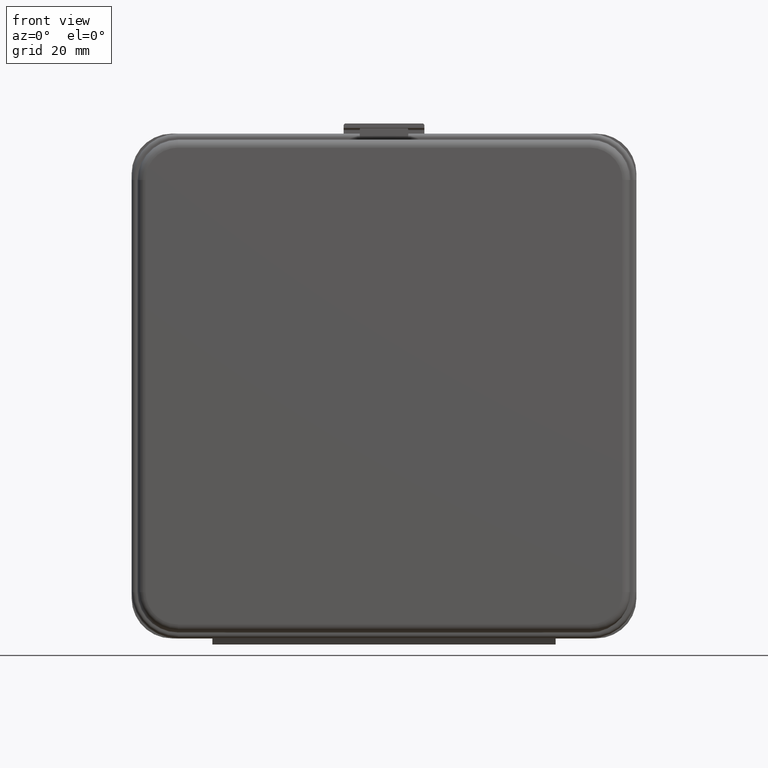
[diagram: clean part render]
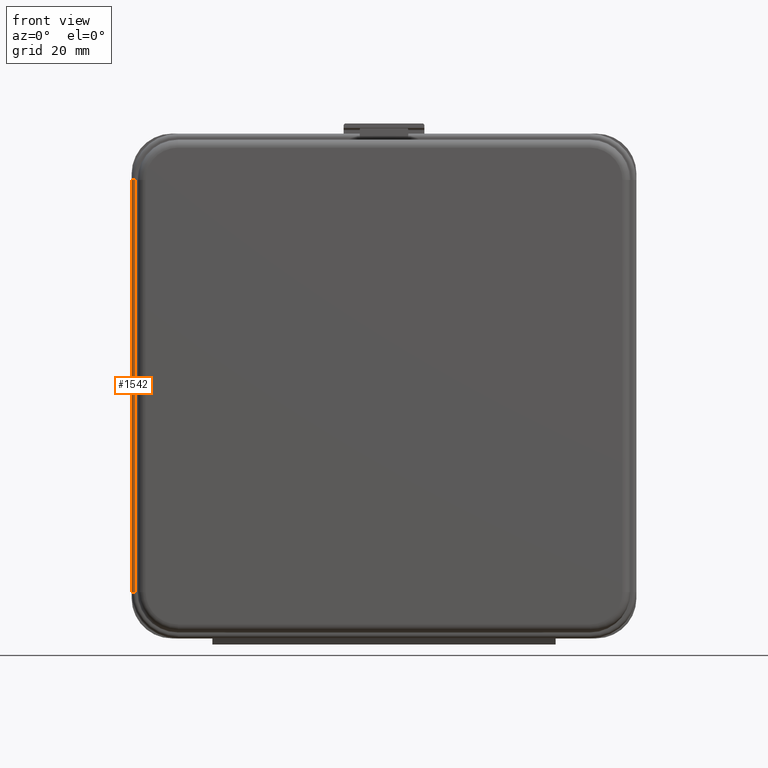
[diagram: same view with one face highlighted and labeled with its STEP entity id]
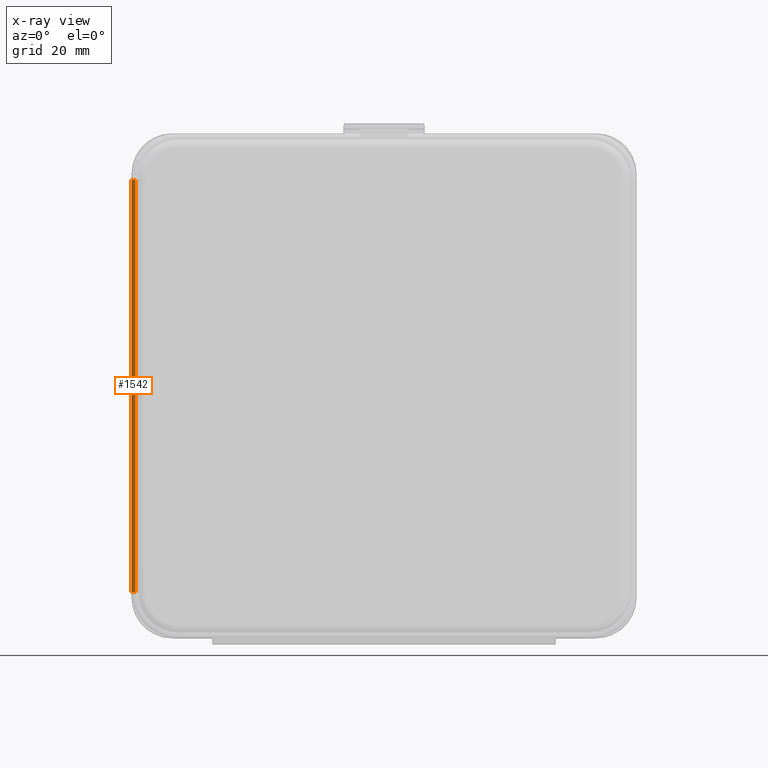
[diagram: x-ray of the same camera — body ghosted, the highlighted face saturated]
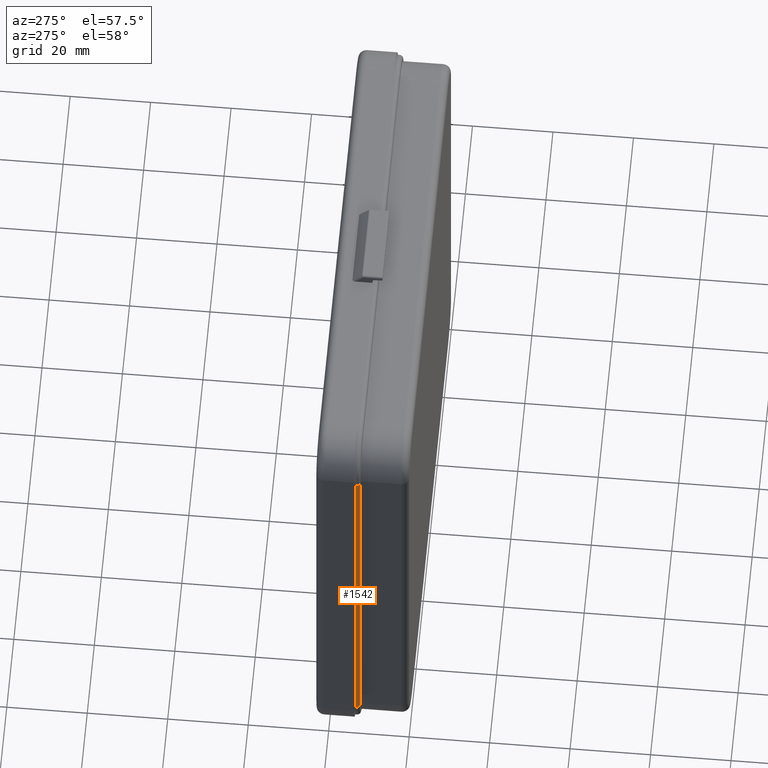
[diagram: same view with one face highlighted and labeled with its STEP entity id]
A machine part, front view. The second image highlights one B-rep face of the part: STEP entity #1542.
The next image is the same camera in x-ray: the body ghosted, the highlighted face saturated — about 0% of this face is hidden behind the body in this view.
A second angle (auxiliary view) of the same face is appended — the face is thin or edge-on in the first view.
In plain terms, the highlighted cylindrical surface (edge-blend (fillet) strip) has radius 1 mm, axis along (0, 0, 1).
Its self-contained STEP definition (entity closure, byte-faithful):
#161 = CARTESIAN_POINT ( 'NONE',  ( -62.50000000000000000, 13.00000000000000178, 50.99999999999996447 ) ) ;
#347 = VECTOR ( 'NONE', #3968, 1000.000000000000000 ) ;
#433 = ORIENTED_EDGE ( 'NONE', *, *, #1133, .F. ) ;
#493 = CARTESIAN_POINT ( 'NONE',  ( -62.50000000000000000, 13.00000000000000178, -51.00000000000000711 ) ) ;
#553 = DIRECTION ( 'NONE',  ( 0.0000000000000000000, 0.0000000000000000000, 1.000000000000000000 ) ) ;
#670 = DIRECTION ( 'NONE',  ( -1.000000000000000000, 0.0000000000000000000, 0.0000000000000000000 ) ) ;
#899 = DIRECTION ( 'NONE',  ( 1.000000000000000000, 0.0000000000000000000, 0.0000000000000000000 ) ) ;
#1098 = ORIENTED_EDGE ( 'NONE', *, *, #3550, .T. ) ;
#1133 = EDGE_CURVE ( 'NONE', #1500, #1476, #1615, .T. ) ;
#1260 = CIRCLE ( 'NONE', #1683, 1.000000000000000888 ) ;
#1282 = CYLINDRICAL_SURFACE ( 'NONE', #1358, 1.000000000000000888 ) ;
#1347 = VERTEX_POINT ( 'NONE', #161 ) ;
#1358 = AXIS2_PLACEMENT_3D ( 'NONE', #3646, #553, #899 ) ;
#1373 = DIRECTION ( 'NONE',  ( -0.0000000000000000000, -0.0000000000000000000, -1.000000000000000000 ) ) ;
#1426 = EDGE_CURVE ( 'NONE', #1476, #1347, #3125, .T. ) ;
#1476 = VERTEX_POINT ( 'NONE', #1980 ) ;
#1480 = AXIS2_PLACEMENT_3D ( 'NONE', #1635, #1590, #670 ) ;
#1500 = VERTEX_POINT ( 'NONE', #2959 ) ;
#1542 = ADVANCED_FACE ( 'NONE', ( #2277 ), #1282, .T. ) ;
#1590 = DIRECTION ( 'NONE',  ( -0.0000000000000000000, -0.0000000000000000000, -1.000000000000000000 ) ) ;
#1615 = CIRCLE ( 'NONE', #1480, 1.000000000000000888 ) ;
#1635 = CARTESIAN_POINT ( 'NONE',  ( -61.50000000000000000, 13.00000000000000178, -51.00000000000000711 ) ) ;
#1683 = AXIS2_PLACEMENT_3D ( 'NONE', #2766, #1373, #3722 ) ;
#1925 = CARTESIAN_POINT ( 'NONE',  ( -61.50000000000000000, 12.00000000000000178, 50.99999999999996447 ) ) ;
#1980 = CARTESIAN_POINT ( 'NONE',  ( -62.50000000000000000, 13.00000000000000178, -51.00000000000000711 ) ) ;
#2173 = DIRECTION ( 'NONE',  ( 0.0000000000000000000, 0.0000000000000000000, 1.000000000000000000 ) ) ;
#2277 = FACE_OUTER_BOUND ( 'NONE', #3580, .T. ) ;
#2425 = VERTEX_POINT ( 'NONE', #1925 ) ;
#2514 = ORIENTED_EDGE ( 'NONE', *, *, #1426, .F. ) ;
#2585 = VECTOR ( 'NONE', #2173, 1000.000000000000000 ) ;
#2766 = CARTESIAN_POINT ( 'NONE',  ( -61.49999999999998579, 13.00000000000000178, 50.99999999999996447 ) ) ;
#2812 = ORIENTED_EDGE ( 'NONE', *, *, #3304, .F. ) ;
#2959 = CARTESIAN_POINT ( 'NONE',  ( -61.50000000000000000, 12.00000000000000178, -51.00000000000000711 ) ) ;
#3125 = LINE ( 'NONE', #493, #2585 ) ;
#3304 = EDGE_CURVE ( 'NONE', #2425, #1500, #3947, .T. ) ;
#3550 = EDGE_CURVE ( 'NONE', #2425, #1347, #1260, .T. ) ;
#3580 = EDGE_LOOP ( 'NONE', ( #1098, #2514, #433, #2812 ) ) ;
#3646 = CARTESIAN_POINT ( 'NONE',  ( -61.50000000000000000, 13.00000000000000178, -51.00000000000000711 ) ) ;
#3722 = DIRECTION ( 'NONE',  ( -1.000000000000000000, 0.0000000000000000000, 0.0000000000000000000 ) ) ;
#3947 = LINE ( 'NONE', #4299, #347 ) ;
#3968 = DIRECTION ( 'NONE',  ( -0.0000000000000000000, 0.0000000000000000000, -1.000000000000000000 ) ) ;
#4299 = CARTESIAN_POINT ( 'NONE',  ( -61.50000000000000000, 12.00000000000000178, 50.99999999999999289 ) ) ;